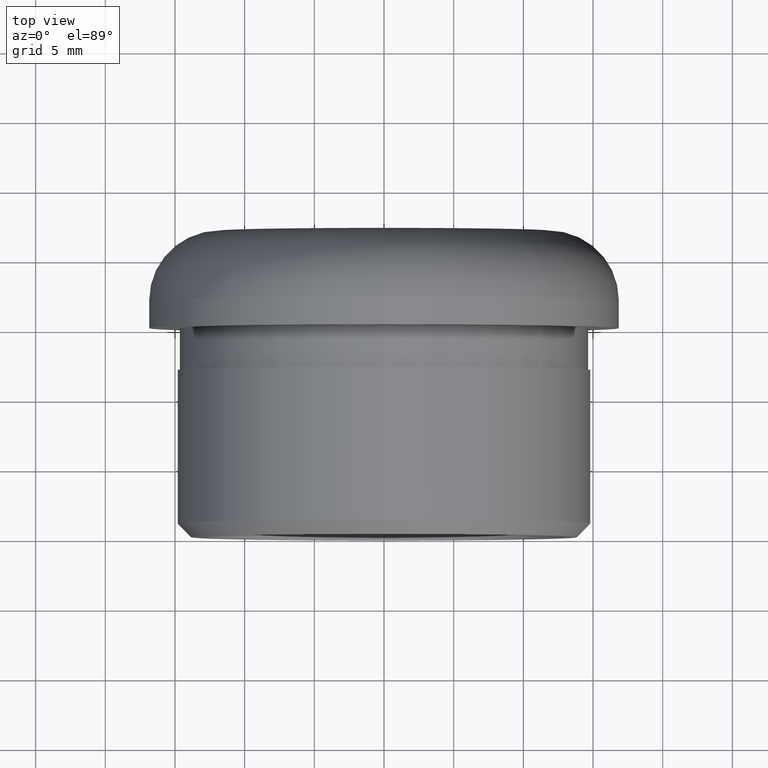
[diagram: clean part render]
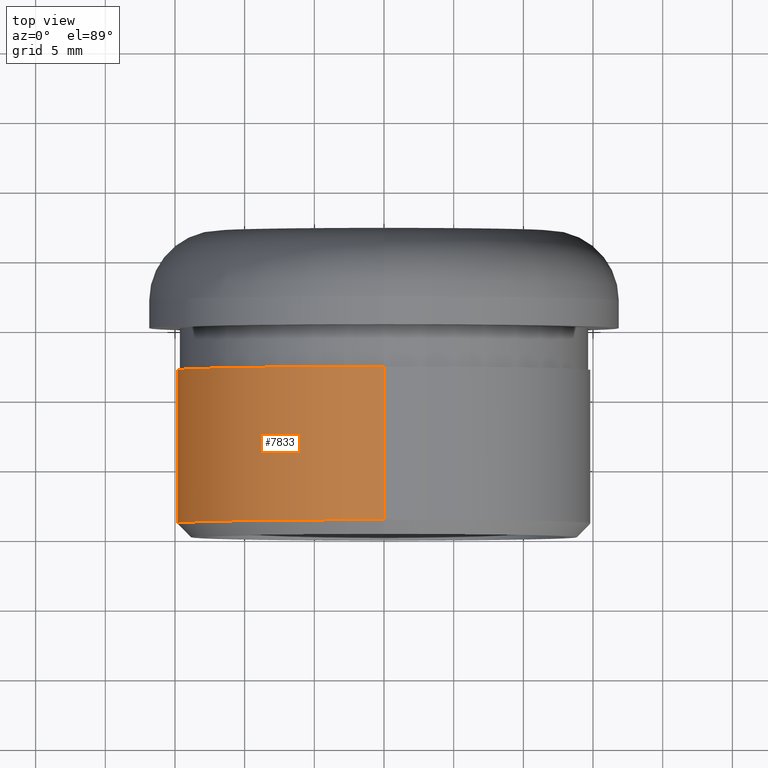
[diagram: same view with one face highlighted and labeled with its STEP entity id]
A machine part, top view. The second image highlights one B-rep face of the part: STEP entity #7833.
In plain terms, the highlighted cylindrical surface (partial cylindrical patch) has radius 14.85 mm, axis along (-0, -1, -0).
Its self-contained STEP definition (entity closure, byte-faithful):
#88 = CARTESIAN_POINT ( 'NONE',  ( 0.0000000000000000000, 20.14999999999999900, -14.85000000000000100 ) ) ;
#394 = AXIS2_PLACEMENT_3D ( 'NONE', #8955, #12151, #14512 ) ;
#424 = EDGE_CURVE ( 'NONE', #4383, #5021, #9692, .T. ) ;
#884 = ORIENTED_EDGE ( 'NONE', *, *, #424, .T. ) ;
#1041 = CARTESIAN_POINT ( 'NONE',  ( 1.818600496733819900E-015, 0.9999999999999940000, 14.85000000000000100 ) ) ;
#1078 = ORIENTED_EDGE ( 'NONE', *, *, #8712, .F. ) ;
#1508 = VECTOR ( 'NONE', #2597, 1000.000000000000000 ) ;
#1527 = VERTEX_POINT ( 'NONE', #11933 ) ;
#2079 = DIRECTION ( 'NONE',  ( 0.0000000000000000000, 0.0000000000000000000, -1.000000000000000000 ) ) ;
#2597 = DIRECTION ( 'NONE',  ( -0.0000000000000000000, -1.000000000000000000, -0.0000000000000000000 ) ) ;
#3086 = EDGE_CURVE ( 'NONE', #1527, #4383, #3479, .T. ) ;
#3334 = DIRECTION ( 'NONE',  ( 0.0000000000000000000, 0.0000000000000000000, -1.000000000000000000 ) ) ;
#3479 = LINE ( 'NONE', #88, #11024 ) ;
#3720 = ORIENTED_EDGE ( 'NONE', *, *, #5494, .T. ) ;
#4129 = AXIS2_PLACEMENT_3D ( 'NONE', #10955, #8774, #2079 ) ;
#4383 = VERTEX_POINT ( 'NONE', #9006 ) ;
#5021 = VERTEX_POINT ( 'NONE', #1041 ) ;
#5494 = EDGE_CURVE ( 'NONE', #9737, #1527, #12830, .T. ) ;
#5594 = ORIENTED_EDGE ( 'NONE', *, *, #3086, .T. ) ;
#6118 = CYLINDRICAL_SURFACE ( 'NONE', #4129, 14.85000000000000100 ) ;
#6213 = CARTESIAN_POINT ( 'NONE',  ( 1.818600496733819900E-015, 12.00000000000000000, 14.85000000000000100 ) ) ;
#7537 = AXIS2_PLACEMENT_3D ( 'NONE', #9953, #12128, #3334 ) ;
#7833 = ADVANCED_FACE ( 'NONE', ( #8088 ), #6118, .T. ) ;
#8088 = FACE_OUTER_BOUND ( 'NONE', #8319, .T. ) ;
#8319 = EDGE_LOOP ( 'NONE', ( #1078, #3720, #5594, #884 ) ) ;
#8712 = EDGE_CURVE ( 'NONE', #9737, #5021, #12785, .T. ) ;
#8774 = DIRECTION ( 'NONE',  ( -0.0000000000000000000, -1.000000000000000000, -0.0000000000000000000 ) ) ;
#8955 = CARTESIAN_POINT ( 'NONE',  ( 0.0000000000000000000, 0.9999999999999940000, 0.0000000000000000000 ) ) ;
#9006 = CARTESIAN_POINT ( 'NONE',  ( 0.0000000000000000000, 0.9999999999999940000, -14.85000000000000100 ) ) ;
#9692 = CIRCLE ( 'NONE', #394, 14.85000000000000100 ) ;
#9737 = VERTEX_POINT ( 'NONE', #6213 ) ;
#9953 = CARTESIAN_POINT ( 'NONE',  ( 0.0000000000000000000, 12.00000000000000000, 0.0000000000000000000 ) ) ;
#10955 = CARTESIAN_POINT ( 'NONE',  ( 0.0000000000000000000, 20.14999999999999900, 0.0000000000000000000 ) ) ;
#11024 = VECTOR ( 'NONE', #11293, 1000.000000000000000 ) ;
#11293 = DIRECTION ( 'NONE',  ( -0.0000000000000000000, -1.000000000000000000, -0.0000000000000000000 ) ) ;
#11933 = CARTESIAN_POINT ( 'NONE',  ( 0.0000000000000000000, 12.00000000000000000, -14.85000000000000100 ) ) ;
#12128 = DIRECTION ( 'NONE',  ( -0.0000000000000000000, -1.000000000000000000, -0.0000000000000000000 ) ) ;
#12151 = DIRECTION ( 'NONE',  ( 0.0000000000000000000, 1.000000000000000000, 0.0000000000000000000 ) ) ;
#12590 = CARTESIAN_POINT ( 'NONE',  ( 1.818600496733819900E-015, 20.14999999999999900, 14.85000000000000100 ) ) ;
#12785 = LINE ( 'NONE', #12590, #1508 ) ;
#12830 = CIRCLE ( 'NONE', #7537, 14.85000000000000100 ) ;
#14512 = DIRECTION ( 'NONE',  ( 0.0000000000000000000, 0.0000000000000000000, -1.000000000000000000 ) ) ;